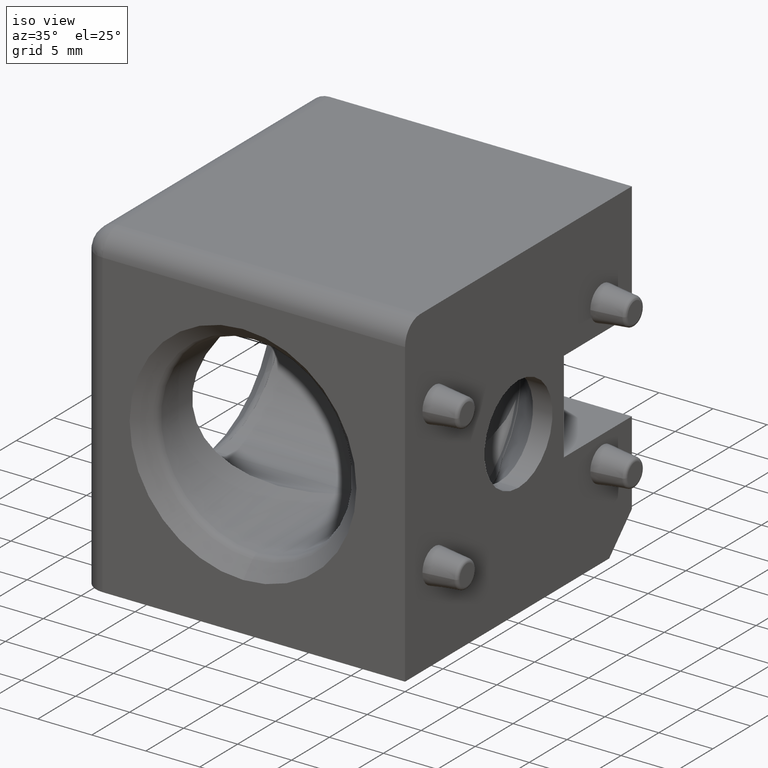
[diagram: clean part render]
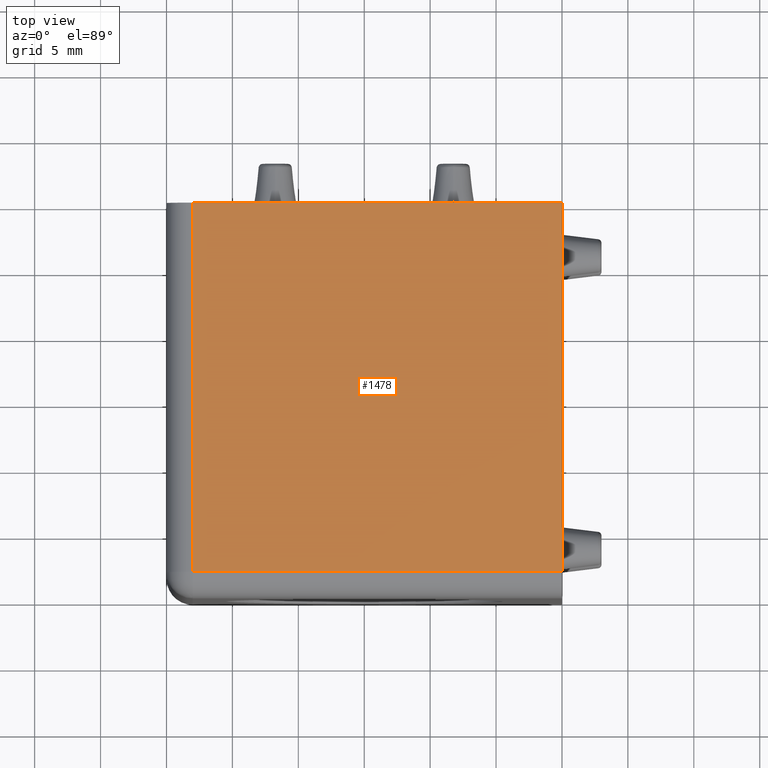
[diagram: tour spotlight — one face highlighted and labeled with its STEP entity id]
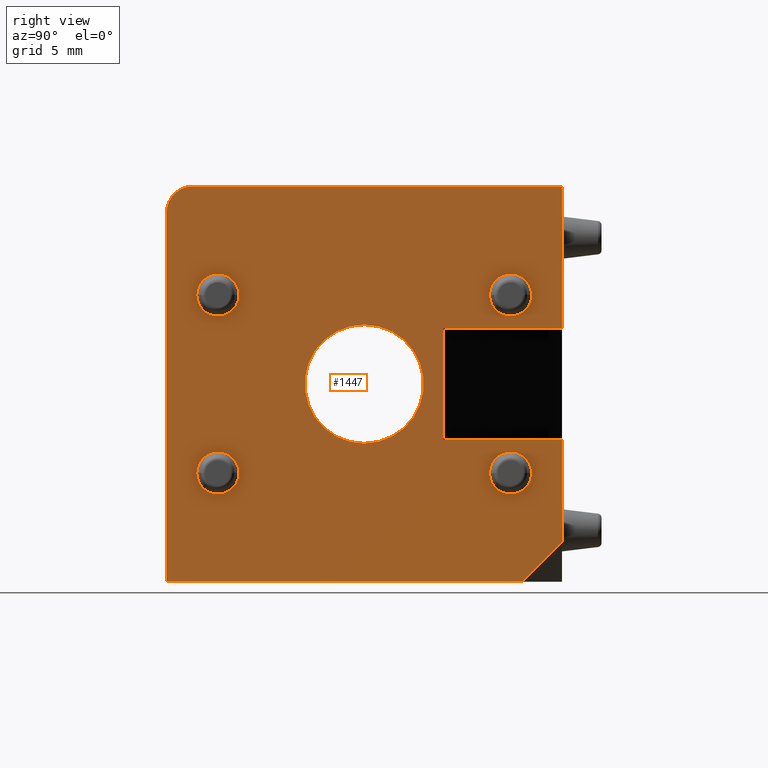
[diagram: tour spotlight — one face highlighted and labeled with its STEP entity id]
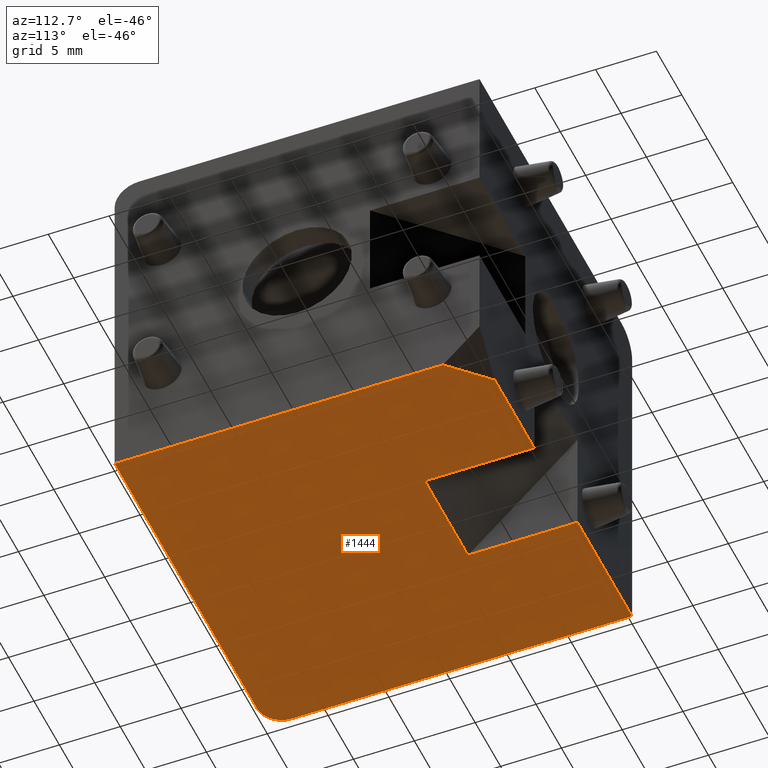
[diagram: tour spotlight — one face highlighted and labeled with its STEP entity id]
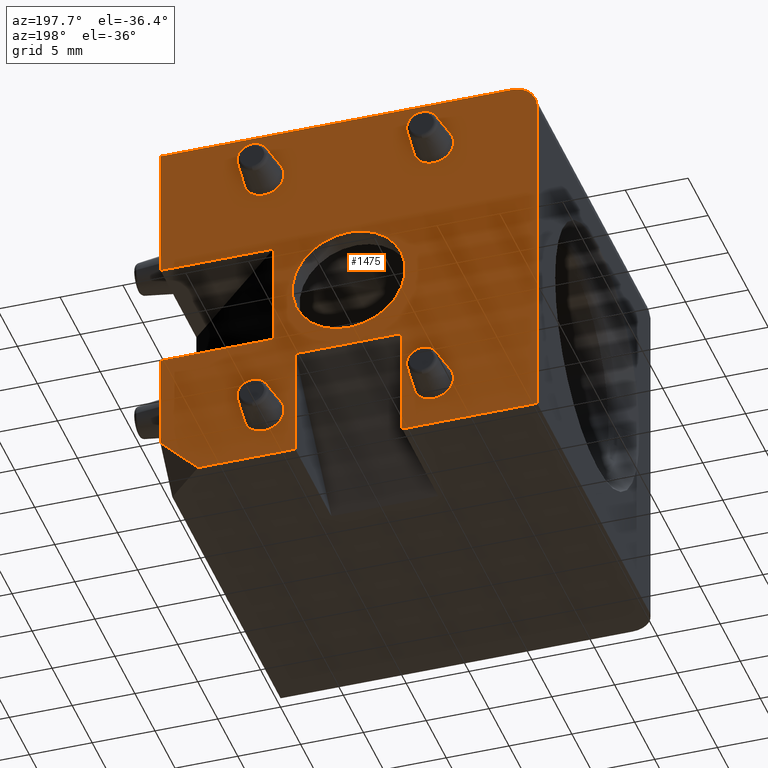
[diagram: tour spotlight — one face highlighted and labeled with its STEP entity id]
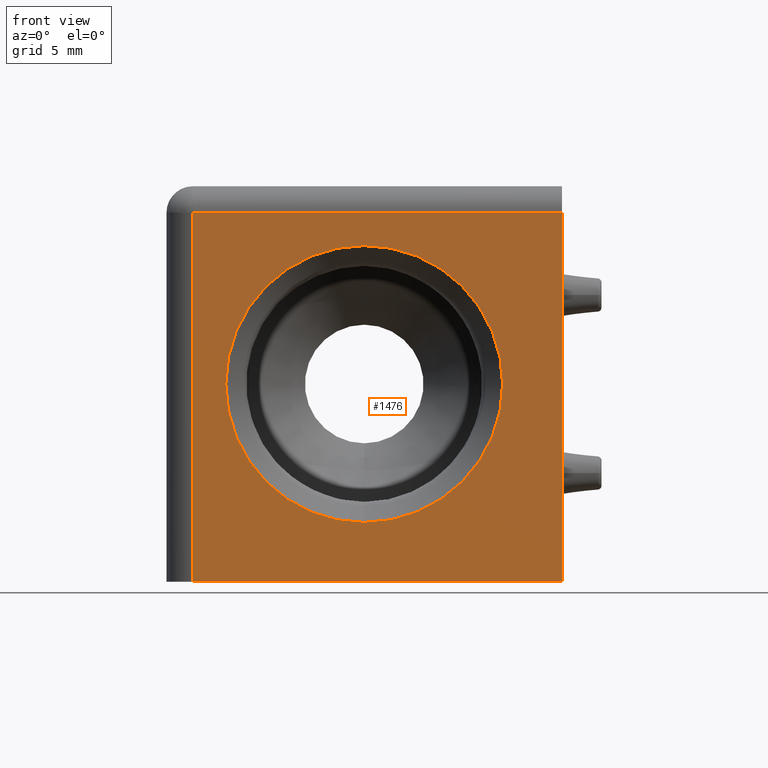
[diagram: tour spotlight — one face highlighted and labeled with its STEP entity id]
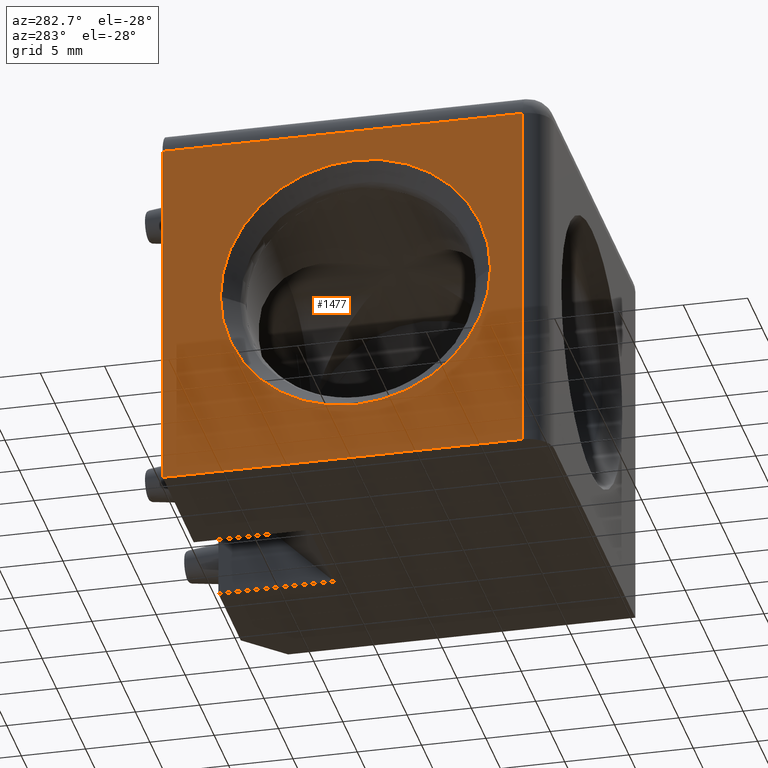
[diagram: tour spotlight — one face highlighted and labeled with its STEP entity id]
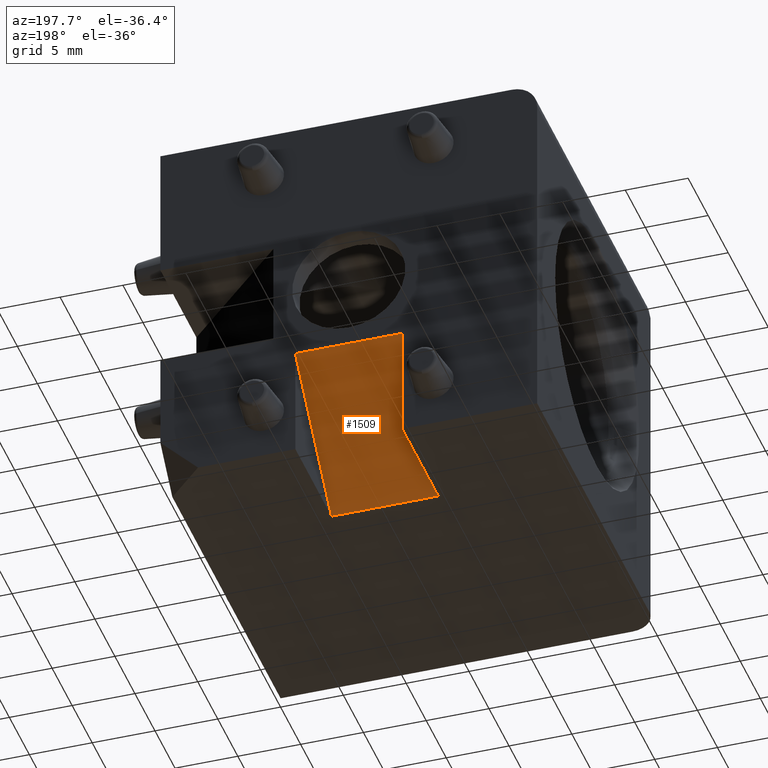
[diagram: tour spotlight — one face highlighted and labeled with its STEP entity id]
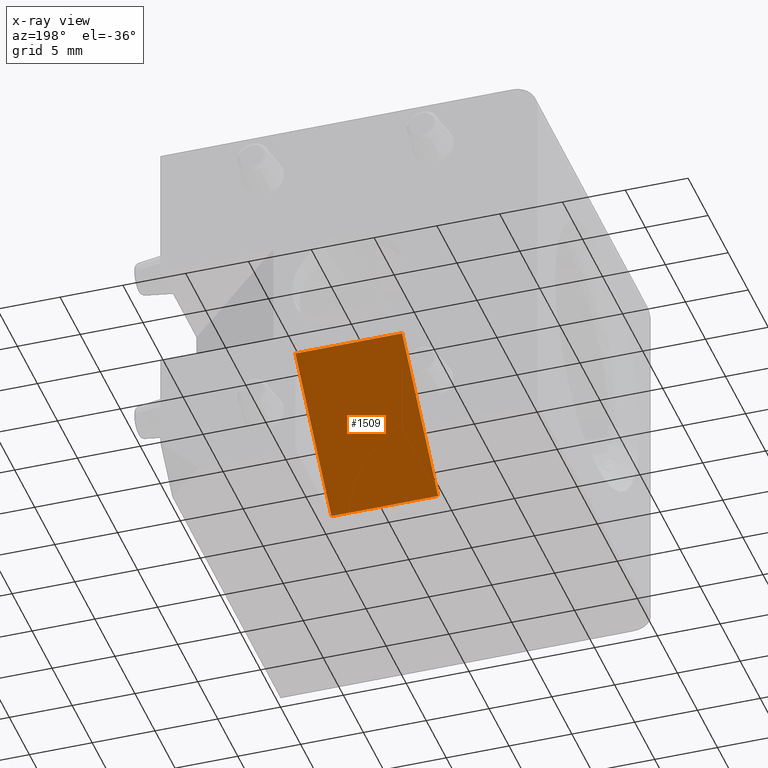
[diagram: x-ray of the same camera — body ghosted, this tour face saturated]
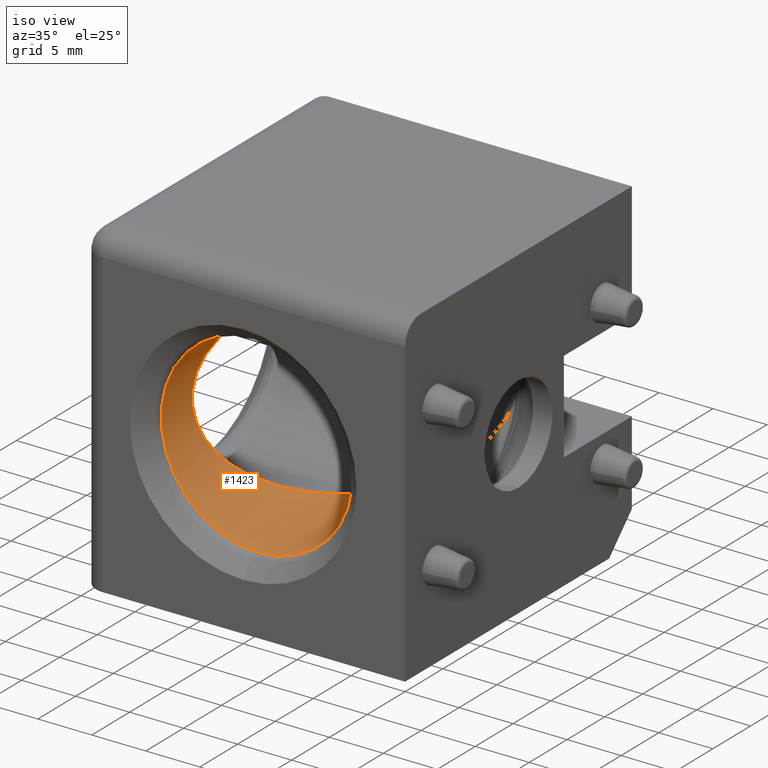
[diagram: tour spotlight — one face highlighted and labeled with its STEP entity id]
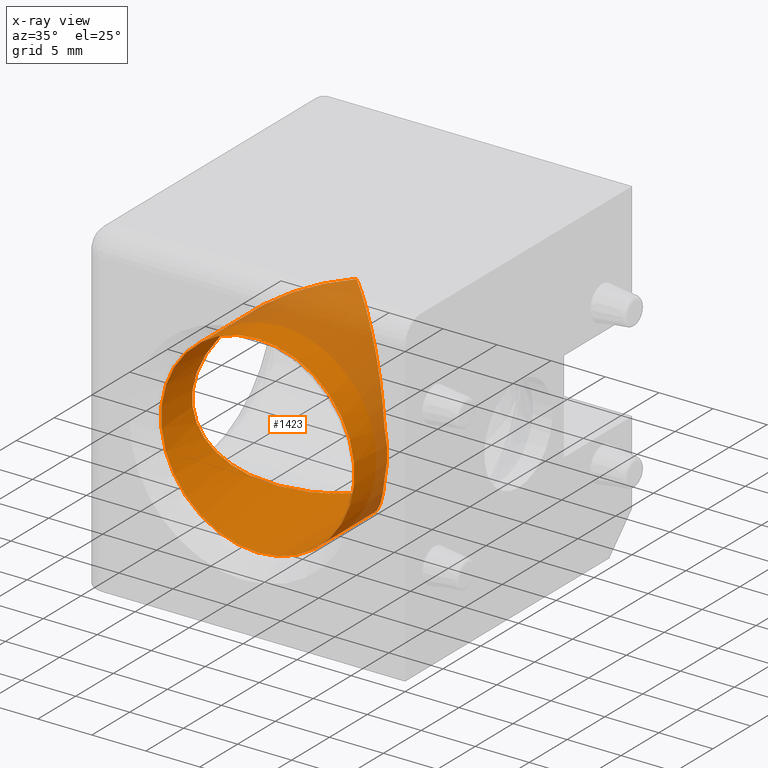
[diagram: x-ray of the same camera — body ghosted, this tour face saturated]
A machine part: a face-by-face anatomy tour. The part has 99 B-rep faces; the first image is the clean iso view, then the 8 largest visible faces are spotlighted one at a time (largest first), each with its STEP entity span.

Face 1 — top view, entity #1478. In plain terms, the highlighted planar face has unit normal (0, 0, 1).
Definition (entity closure, byte-faithful):
#42=PLANE('',#1691);
#80=LINE('',#2590,#148);
#112=LINE('',#2787,#180);
#120=LINE('',#2810,#188);
#121=LINE('',#2811,#189);
#148=VECTOR('',#1892,28.);
#180=VECTOR('',#2122,28.);
#188=VECTOR('',#2150,28.);
#189=VECTOR('',#2151,28.);
#321=FACE_OUTER_BOUND('',#436,.T.);
#436=EDGE_LOOP('',(#1240,#1241,#1242,#1243));
#654=VERTEX_POINT('',#2587);
#655=VERTEX_POINT('',#2589);
#721=VERTEX_POINT('',#2785);
#726=VERTEX_POINT('',#2809);
#812=EDGE_CURVE('',#655,#654,#80,.T.);
#915=EDGE_CURVE('',#654,#721,#112,.T.);
#930=EDGE_CURVE('',#721,#726,#120,.T.);
#931=EDGE_CURVE('',#726,#655,#121,.T.);
#1240=ORIENTED_EDGE('',*,*,#812,.T.);
#1241=ORIENTED_EDGE('',*,*,#915,.T.);
#1242=ORIENTED_EDGE('',*,*,#930,.T.);
#1243=ORIENTED_EDGE('',*,*,#931,.T.);
#1478=ADVANCED_FACE('',(#321),#42,.T.);
#1691=AXIS2_PLACEMENT_3D('',#2808,#2148,#2149);
#1892=DIRECTION('',(-1.15648231731787E-16,1.,0.));
#2122=DIRECTION('',(-1.,0.,0.));
#2148=DIRECTION('center_axis',(0.,0.,1.));
#2149=DIRECTION('ref_axis',(1.,0.,0.));
#2150=DIRECTION('',(1.15648231731787E-16,-1.,0.));
#2151=DIRECTION('',(1.,0.,0.));
#2587=CARTESIAN_POINT('',(15.,15.,15.));
#2589=CARTESIAN_POINT('',(15.,-13.,15.));
#2590=CARTESIAN_POINT('',(15.,15.,15.));
#2785=CARTESIAN_POINT('',(-13.,15.,15.));
#2787=CARTESIAN_POINT('',(-15.,15.,15.));
#2808=CARTESIAN_POINT('Origin',(-15.,-15.,15.));
#2809=CARTESIAN_POINT('',(-13.,-13.,15.));
#2810=CARTESIAN_POINT('',(-13.,-15.,15.));
#2811=CARTESIAN_POINT('',(15.,-13.,15.));

Face 2 — right view, entity #1447. In plain terms, the highlighted planar face has unit normal (-1, -0, 0).
Definition (entity closure, byte-faithful):
#37=PLANE('',#1582);
#61=LINE('',#2545,#129);
#74=LINE('',#2578,#142);
#75=LINE('',#2580,#143);
#76=LINE('',#2582,#144);
#77=LINE('',#2584,#145);
#78=LINE('',#2586,#146);
#79=LINE('',#2588,#147);
#80=LINE('',#2590,#148);
#81=LINE('',#2593,#149);
#129=VECTOR('',#1859,27.);
#142=VECTOR('',#1886,4.24264068711926);
#143=VECTOR('',#1887,7.75000000000004);
#144=VECTOR('',#1888,9.);
#145=VECTOR('',#1889,8.5);
#146=VECTOR('',#1890,9.);
#147=VECTOR('',#1891,10.75);
#148=VECTOR('',#1892,28.);
#149=VECTOR('',#1895,28.);
#225=FACE_BOUND('',#394,.T.);
#226=FACE_BOUND('',#395,.T.);
#227=FACE_BOUND('',#396,.T.);
#228=FACE_BOUND('',#397,.T.);
#229=FACE_BOUND('',#398,.T.);
#290=FACE_OUTER_BOUND('',#393,.T.);
#393=EDGE_LOOP('',(#1069,#1070,#1071,#1072,#1073,#1074,#1075,#1076,#1077,
#1078));
#394=EDGE_LOOP('',(#1079,#1080));
#395=EDGE_LOOP('',(#1081,#1082));
#396=EDGE_LOOP('',(#1083,#1084));
#397=EDGE_LOOP('',(#1085,#1086));
#398=EDGE_LOOP('',(#1087,#1088));
#503=CIRCLE('',#1581,4.5);
#504=CIRCLE('',#1583,2.);
#505=CIRCLE('',#1584,4.5);
#506=CIRCLE('',#1585,1.6);
#507=CIRCLE('',#1586,1.6);
#508=CIRCLE('',#1587,1.6);
#509=CIRCLE('',#1588,1.6);
#510=CIRCLE('',#1589,1.6);
#511=CIRCLE('',#1590,1.6);
#512=CIRCLE('',#1591,1.6);
#513=CIRCLE('',#1592,1.6);
#635=VERTEX_POINT('',#2543);
#636=VERTEX_POINT('',#2544);
#647=VERTEX_POINT('',#2571);
#648=VERTEX_POINT('',#2573);
#649=VERTEX_POINT('',#2577);
#650=VERTEX_POINT('',#2579);
#651=VERTEX_POINT('',#2581);
#652=VERTEX_POINT('',#2583);
#653=VERTEX_POINT('',#2585);
#654=VERTEX_POINT('',#2587);
#655=VERTEX_POINT('',#2589);
#656=VERTEX_POINT('',#2591);
#657=VERTEX_POINT('',#2595);
#658=VERTEX_POINT('',#2596);
#659=VERTEX_POINT('',#2599);
#660=VERTEX_POINT('',#2600);
#661=VERTEX_POINT('',#2603);
#662=VERTEX_POINT('',#2604);
#663=VERTEX_POINT('',#2607);
#664=VERTEX_POINT('',#2608);
#789=EDGE_CURVE('',#635,#636,#61,.T.);
#804=EDGE_CURVE('',#648,#647,#503,.T.);
#806=EDGE_CURVE('',#636,#649,#74,.T.);
#807=EDGE_CURVE('',#650,#649,#75,.T.);
#808=EDGE_CURVE('',#651,#650,#76,.T.);
#809=EDGE_CURVE('',#651,#652,#77,.T.);
#810=EDGE_CURVE('',#652,#653,#78,.T.);
#811=EDGE_CURVE('',#654,#653,#79,.T.);
#812=EDGE_CURVE('',#655,#654,#80,.T.);
#813=EDGE_CURVE('',#655,#656,#504,.T.);
#814=EDGE_CURVE('',#656,#635,#81,.T.);
#815=EDGE_CURVE('',#647,#648,#505,.T.);
#816=EDGE_CURVE('',#657,#658,#506,.T.);
#817=EDGE_CURVE('',#658,#657,#507,.T.);
#818=EDGE_CURVE('',#659,#660,#508,.T.);
#819=EDGE_CURVE('',#660,#659,#509,.T.);
#820=EDGE_CURVE('',#661,#662,#510,.T.);
#821=EDGE_CURVE('',#662,#661,#511,.T.);
#822=EDGE_CURVE('',#663,#664,#512,.T.);
#823=EDGE_CURVE('',#664,#663,#513,.T.);
#1069=ORIENTED_EDGE('',*,*,#789,.T.);
#1070=ORIENTED_EDGE('',*,*,#806,.T.);
#1071=ORIENTED_EDGE('',*,*,#807,.F.);
#1072=ORIENTED_EDGE('',*,*,#808,.F.);
#1073=ORIENTED_EDGE('',*,*,#809,.T.);
#1074=ORIENTED_EDGE('',*,*,#810,.T.);
#1075=ORIENTED_EDGE('',*,*,#811,.F.);
#1076=ORIENTED_EDGE('',*,*,#812,.F.);
#1077=ORIENTED_EDGE('',*,*,#813,.T.);
#1078=ORIENTED_EDGE('',*,*,#814,.T.);
#1079=ORIENTED_EDGE('',*,*,#815,.T.);
#1080=ORIENTED_EDGE('',*,*,#804,.T.);
#1081=ORIENTED_EDGE('',*,*,#816,.F.);
#1082=ORIENTED_EDGE('',*,*,#817,.F.);
#1083=ORIENTED_EDGE('',*,*,#818,.F.);
#1084=ORIENTED_EDGE('',*,*,#819,.F.);
#1085=ORIENTED_EDGE('',*,*,#820,.F.);
#1086=ORIENTED_EDGE('',*,*,#821,.F.);
#1087=ORIENTED_EDGE('',*,*,#822,.F.);
#1088=ORIENTED_EDGE('',*,*,#823,.F.);
#1447=ADVANCED_FACE('',(#290,#225,#226,#227,#228,#229),#37,.F.);
#1581=AXIS2_PLACEMENT_3D('',#2574,#1881,#1882);
#1582=AXIS2_PLACEMENT_3D('',#2576,#1884,#1885);
#1583=AXIS2_PLACEMENT_3D('',#2592,#1893,#1894);
#1584=AXIS2_PLACEMENT_3D('',#2594,#1896,#1897);
#1585=AXIS2_PLACEMENT_3D('',#2597,#1898,#1899);
#1586=AXIS2_PLACEMENT_3D('',#2598,#1900,#1901);
#1587=AXIS2_PLACEMENT_3D('',#2601,#1902,#1903);
#1588=AXIS2_PLACEMENT_3D('',#2602,#1904,#1905);
#1589=AXIS2_PLACEMENT_3D('',#2605,#1906,#1907);
#1590=AXIS2_PLACEMENT_3D('',#2606,#1908,#1909);
#1591=AXIS2_PLACEMENT_3D('',#2609,#1910,#1911);
#1592=AXIS2_PLACEMENT_3D('',#2610,#1912,#1913);
#1859=DIRECTION('',(-1.15648231731787E-16,1.,0.));
#1881=DIRECTION('center_axis',(-1.,0.,0.));
#1882=DIRECTION('ref_axis',(0.,0.,1.));
#1884=DIRECTION('center_axis',(-1.,-1.15648231731787E-16,0.));
#1885=DIRECTION('ref_axis',(0.,1.,0.));
#1886=DIRECTION('',(-8.17756488897804E-17,0.707106781186552,0.707106781186543));
#1887=DIRECTION('',(0.,0.,-1.));
#1888=DIRECTION('',(-1.92747052886312E-16,1.,0.));
#1889=DIRECTION('',(0.,0.,1.));
#1890=DIRECTION('',(-1.92747052886312E-16,1.,0.));
#1891=DIRECTION('',(0.,0.,-1.));
#1892=DIRECTION('',(-1.15648231731787E-16,1.,0.));
#1893=DIRECTION('center_axis',(1.,0.,0.));
#1894=DIRECTION('ref_axis',(0.,-1.,0.));
#1895=DIRECTION('',(0.,0.,-1.));
#1896=DIRECTION('center_axis',(-1.,0.,0.));
#1897=DIRECTION('ref_axis',(0.,0.,1.));
#1898=DIRECTION('center_axis',(1.,0.,0.));
#1899=DIRECTION('ref_axis',(0.,-1.,0.));
#1900=DIRECTION('center_axis',(1.,0.,0.));
#1901=DIRECTION('ref_axis',(0.,-1.,0.));
#1902=DIRECTION('center_axis',(1.,0.,0.));
#1903=DIRECTION('ref_axis',(0.,-1.,0.));
#1904=DIRECTION('center_axis',(1.,0.,0.));
#1905=DIRECTION('ref_axis',(0.,-1.,0.));
#1906=DIRECTION('center_axis',(1.,0.,0.));
#1907=DIRECTION('ref_axis',(0.,-1.,0.));
#1908=DIRECTION('center_axis',(1.,0.,0.));
#1909=DIRECTION('ref_axis',(0.,-1.,0.));
#1910=DIRECTION('center_axis',(1.,0.,0.));
#1911=DIRECTION('ref_axis',(0.,-1.,0.));
#1912=DIRECTION('center_axis',(1.,0.,0.));
#1913=DIRECTION('ref_axis',(0.,-1.,0.));
#2543=CARTESIAN_POINT('',(15.,-15.,-15.));
#2544=CARTESIAN_POINT('',(15.,12.,-15.));
#2545=CARTESIAN_POINT('',(15.,15.,-15.));
#2571=CARTESIAN_POINT('',(15.,5.51091059616309E-16,-4.5));
#2573=CARTESIAN_POINT('',(15.,0.,4.5));
#2574=CARTESIAN_POINT('Origin',(15.,0.,0.));
#2576=CARTESIAN_POINT('Origin',(15.,15.,15.));
#2577=CARTESIAN_POINT('',(15.,15.,-12.));
#2578=CARTESIAN_POINT('',(15.,14.25,-12.75));
#2579=CARTESIAN_POINT('',(15.,15.,-4.25));
#2580=CARTESIAN_POINT('',(15.,15.,15.));
#2581=CARTESIAN_POINT('',(15.,6.,-4.25));
#2582=CARTESIAN_POINT('',(15.,6.,-4.25));
#2583=CARTESIAN_POINT('',(15.,6.,4.25));
#2584=CARTESIAN_POINT('',(15.,6.,-4.25));
#2585=CARTESIAN_POINT('',(15.,15.,4.25));
#2586=CARTESIAN_POINT('',(15.,6.,4.25));
#2587=CARTESIAN_POINT('',(15.,15.,15.));
#2588=CARTESIAN_POINT('',(15.,15.,15.));
#2589=CARTESIAN_POINT('',(15.,-13.,15.));
#2590=CARTESIAN_POINT('',(15.,15.,15.));
#2591=CARTESIAN_POINT('',(15.,-15.,13.));
#2592=CARTESIAN_POINT('Origin',(15.,-13.,13.));
#2593=CARTESIAN_POINT('',(15.,-15.,15.));
#2594=CARTESIAN_POINT('Origin',(15.,0.,0.));
#2595=CARTESIAN_POINT('',(15.,12.7,-6.75));
#2596=CARTESIAN_POINT('',(15.,9.50000000000001,-6.75));
#2597=CARTESIAN_POINT('Origin',(15.,11.1,-6.75));
#2598=CARTESIAN_POINT('Origin',(15.,11.1,-6.75));
#2599=CARTESIAN_POINT('',(15.,12.7,6.75));
#2600=CARTESIAN_POINT('',(15.,9.5,6.75));
#2601=CARTESIAN_POINT('Origin',(15.,11.1,6.75));
#2602=CARTESIAN_POINT('Origin',(15.,11.1,6.75));
#2603=CARTESIAN_POINT('',(15.,-9.5,6.75));
#2604=CARTESIAN_POINT('',(15.,-12.7,6.75));
#2605=CARTESIAN_POINT('Origin',(15.,-11.1,6.75));
#2606=CARTESIAN_POINT('Origin',(15.,-11.1,6.75));
#2607=CARTESIAN_POINT('',(15.,-9.5,-6.75));
#2608=CARTESIAN_POINT('',(15.,-12.7,-6.75));
#2609=CARTESIAN_POINT('Origin',(15.,-11.1,-6.75));
#2610=CARTESIAN_POINT('Origin',(15.,-11.1,-6.75));

Face 3 — auxiliary view, entity #1444. In plain terms, the highlighted planar face has unit normal (0, 0, 1).
Definition (entity closure, byte-faithful):
#36=PLANE('',#1575);
#61=LINE('',#2545,#129);
#62=LINE('',#2547,#130);
#63=LINE('',#2551,#131);
#64=LINE('',#2553,#132);
#65=LINE('',#2555,#133);
#66=LINE('',#2557,#134);
#67=LINE('',#2559,#135);
#68=LINE('',#2561,#136);
#69=LINE('',#2562,#137);
#129=VECTOR('',#1859,27.);
#130=VECTOR('',#1860,28.);
#131=VECTOR('',#1863,28.);
#132=VECTOR('',#1864,10.75);
#133=VECTOR('',#1865,9.);
#134=VECTOR('',#1866,8.5);
#135=VECTOR('',#1867,9.);
#136=VECTOR('',#1868,7.75);
#137=VECTOR('',#1869,4.24264068711928);
#287=FACE_OUTER_BOUND('',#390,.T.);
#390=EDGE_LOOP('',(#1049,#1050,#1051,#1052,#1053,#1054,#1055,#1056,#1057,
#1058));
#500=CIRCLE('',#1576,2.);
#635=VERTEX_POINT('',#2543);
#636=VERTEX_POINT('',#2544);
#637=VERTEX_POINT('',#2546);
#638=VERTEX_POINT('',#2548);
#639=VERTEX_POINT('',#2550);
#640=VERTEX_POINT('',#2552);
#641=VERTEX_POINT('',#2554);
#642=VERTEX_POINT('',#2556);
#643=VERTEX_POINT('',#2558);
#644=VERTEX_POINT('',#2560);
#789=EDGE_CURVE('',#635,#636,#61,.T.);
#790=EDGE_CURVE('',#637,#635,#62,.T.);
#791=EDGE_CURVE('',#637,#638,#500,.T.);
#792=EDGE_CURVE('',#639,#638,#63,.T.);
#793=EDGE_CURVE('',#640,#639,#64,.T.);
#794=EDGE_CURVE('',#641,#640,#65,.T.);
#795=EDGE_CURVE('',#641,#642,#66,.T.);
#796=EDGE_CURVE('',#642,#643,#67,.T.);
#797=EDGE_CURVE('',#644,#643,#68,.T.);
#798=EDGE_CURVE('',#636,#644,#69,.T.);
#1049=ORIENTED_EDGE('',*,*,#789,.F.);
#1050=ORIENTED_EDGE('',*,*,#790,.F.);
#1051=ORIENTED_EDGE('',*,*,#791,.T.);
#1052=ORIENTED_EDGE('',*,*,#792,.F.);
#1053=ORIENTED_EDGE('',*,*,#793,.F.);
#1054=ORIENTED_EDGE('',*,*,#794,.F.);
#1055=ORIENTED_EDGE('',*,*,#795,.T.);
#1056=ORIENTED_EDGE('',*,*,#796,.T.);
#1057=ORIENTED_EDGE('',*,*,#797,.F.);
#1058=ORIENTED_EDGE('',*,*,#798,.F.);
#1444=ADVANCED_FACE('',(#287),#36,.F.);
#1575=AXIS2_PLACEMENT_3D('',#2542,#1857,#1858);
#1576=AXIS2_PLACEMENT_3D('',#2549,#1861,#1862);
#1857=DIRECTION('center_axis',(0.,0.,1.));
#1858=DIRECTION('ref_axis',(1.,0.,0.));
#1859=DIRECTION('',(-1.15648231731787E-16,1.,0.));
#1860=DIRECTION('',(1.,0.,0.));
#1861=DIRECTION('center_axis',(0.,0.,-1.));
#1862=DIRECTION('ref_axis',(1.,0.,0.));
#1863=DIRECTION('',(1.15648231731787E-16,-1.,0.));
#1864=DIRECTION('',(-1.,0.,0.));
#1865=DIRECTION('',(0.,1.,0.));
#1866=DIRECTION('',(1.,0.,0.));
#1867=DIRECTION('',(0.,1.,0.));
#1868=DIRECTION('',(-1.,0.,0.));
#1869=DIRECTION('',(-0.707106781186548,0.707106781186548,0.));
#2542=CARTESIAN_POINT('Origin',(12.9568111675367,0.,-15.));
#2543=CARTESIAN_POINT('',(15.,-15.,-15.));
#2544=CARTESIAN_POINT('',(15.,12.,-15.));
#2545=CARTESIAN_POINT('',(15.,15.,-15.));
#2546=CARTESIAN_POINT('',(-13.,-15.,-15.));
#2547=CARTESIAN_POINT('',(-15.,-15.,-15.));
#2548=CARTESIAN_POINT('',(-15.,-13.,-15.));
#2549=CARTESIAN_POINT('Origin',(-13.,-13.,-15.));
#2550=CARTESIAN_POINT('',(-15.,15.,-15.));
#2551=CARTESIAN_POINT('',(-15.,15.,-15.));
#2552=CARTESIAN_POINT('',(-4.25,15.,-15.));
#2553=CARTESIAN_POINT('',(-15.,15.,-15.));
#2554=CARTESIAN_POINT('',(-4.25,5.99999999999999,-15.));
#2555=CARTESIAN_POINT('',(-4.25,6.,-15.));
#2556=CARTESIAN_POINT('',(4.25,5.99999999999999,-15.));
#2557=CARTESIAN_POINT('',(-7.5,5.99999999999999,-15.));
#2558=CARTESIAN_POINT('',(4.25,15.,-15.));
#2559=CARTESIAN_POINT('',(4.25,6.,-15.));
#2560=CARTESIAN_POINT('',(12.,15.,-15.));
#2561=CARTESIAN_POINT('',(-15.,15.,-15.));
#2562=CARTESIAN_POINT('',(15.,12.,-15.));

Face 4 — auxiliary view, entity #1475. In plain terms, the highlighted planar face has unit normal (0, -1, 0).
Definition (entity closure, byte-faithful):
#39=PLANE('',#1680);
#64=LINE('',#2553,#132);
#68=LINE('',#2561,#136);
#75=LINE('',#2580,#143);
#79=LINE('',#2588,#147);
#84=LINE('',#2625,#152);
#108=LINE('',#2779,#176);
#109=LINE('',#2781,#177);
#110=LINE('',#2782,#178);
#111=LINE('',#2784,#179);
#112=LINE('',#2787,#180);
#113=LINE('',#2789,#181);
#114=LINE('',#2791,#182);
#115=LINE('',#2792,#183);
#132=VECTOR('',#1864,10.75);
#136=VECTOR('',#1868,7.75);
#143=VECTOR('',#1887,7.75000000000004);
#147=VECTOR('',#1891,10.75);
#152=VECTOR('',#1932,9.);
#176=VECTOR('',#2116,4.24264068711926);
#177=VECTOR('',#2117,9.);
#178=VECTOR('',#2118,8.5);
#179=VECTOR('',#2119,28.);
#180=VECTOR('',#2122,28.);
#181=VECTOR('',#2123,9.);
#182=VECTOR('',#2124,8.5);
#183=VECTOR('',#2125,9.);
#230=FACE_BOUND('',#427,.T.);
#231=FACE_BOUND('',#428,.T.);
#232=FACE_BOUND('',#429,.T.);
#233=FACE_BOUND('',#430,.T.);
#234=FACE_BOUND('',#431,.T.);
#318=FACE_OUTER_BOUND('',#426,.T.);
#426=EDGE_LOOP('',(#1204,#1205,#1206,#1207,#1208,#1209,#1210,#1211,#1212,
#1213,#1214,#1215,#1216,#1217));
#427=EDGE_LOOP('',(#1218,#1219));
#428=EDGE_LOOP('',(#1220,#1221));
#429=EDGE_LOOP('',(#1222,#1223));
#430=EDGE_LOOP('',(#1224,#1225));
#431=EDGE_LOOP('',(#1226,#1227));
#565=CIRCLE('',#1665,1.6);
#567=CIRCLE('',#1668,1.6);
#569=CIRCLE('',#1671,1.6);
#571=CIRCLE('',#1674,1.6);
#573=CIRCLE('',#1678,4.5);
#574=CIRCLE('',#1681,2.);
#575=CIRCLE('',#1682,1.6);
#576=CIRCLE('',#1683,1.6);
#577=CIRCLE('',#1684,4.5);
#578=CIRCLE('',#1685,1.6);
#579=CIRCLE('',#1686,1.6);
#639=VERTEX_POINT('',#2550);
#640=VERTEX_POINT('',#2552);
#643=VERTEX_POINT('',#2558);
#644=VERTEX_POINT('',#2560);
#649=VERTEX_POINT('',#2577);
#650=VERTEX_POINT('',#2579);
#653=VERTEX_POINT('',#2585);
#654=VERTEX_POINT('',#2587);
#668=VERTEX_POINT('',#2624);
#709=VERTEX_POINT('',#2743);
#710=VERTEX_POINT('',#2745);
#711=VERTEX_POINT('',#2750);
#712=VERTEX_POINT('',#2752);
#713=VERTEX_POINT('',#2757);
#714=VERTEX_POINT('',#2759);
#715=VERTEX_POINT('',#2764);
#716=VERTEX_POINT('',#2766);
#717=VERTEX_POINT('',#2772);
#718=VERTEX_POINT('',#2773);
#719=VERTEX_POINT('',#2780);
#720=VERTEX_POINT('',#2783);
#721=VERTEX_POINT('',#2785);
#722=VERTEX_POINT('',#2788);
#723=VERTEX_POINT('',#2790);
#793=EDGE_CURVE('',#640,#639,#64,.T.);
#797=EDGE_CURVE('',#644,#643,#68,.T.);
#807=EDGE_CURVE('',#650,#649,#75,.T.);
#811=EDGE_CURVE('',#654,#653,#79,.T.);
#830=EDGE_CURVE('',#640,#668,#84,.T.);
#892=EDGE_CURVE('',#709,#710,#565,.T.);
#896=EDGE_CURVE('',#711,#712,#567,.T.);
#900=EDGE_CURVE('',#713,#714,#569,.T.);
#904=EDGE_CURVE('',#715,#716,#571,.T.);
#907=EDGE_CURVE('',#717,#718,#573,.T.);
#910=EDGE_CURVE('',#649,#644,#108,.T.);
#911=EDGE_CURVE('',#643,#719,#109,.T.);
#912=EDGE_CURVE('',#668,#719,#110,.T.);
#913=EDGE_CURVE('',#720,#639,#111,.T.);
#914=EDGE_CURVE('',#720,#721,#574,.T.);
#915=EDGE_CURVE('',#654,#721,#112,.T.);
#916=EDGE_CURVE('',#653,#722,#113,.T.);
#917=EDGE_CURVE('',#723,#722,#114,.T.);
#918=EDGE_CURVE('',#650,#723,#115,.T.);
#919=EDGE_CURVE('',#710,#709,#575,.T.);
#920=EDGE_CURVE('',#714,#713,#576,.T.);
#921=EDGE_CURVE('',#718,#717,#577,.T.);
#922=EDGE_CURVE('',#716,#715,#578,.T.);
#923=EDGE_CURVE('',#712,#711,#579,.T.);
#1204=ORIENTED_EDGE('',*,*,#807,.T.);
#1205=ORIENTED_EDGE('',*,*,#910,.T.);
#1206=ORIENTED_EDGE('',*,*,#797,.T.);
#1207=ORIENTED_EDGE('',*,*,#911,.T.);
#1208=ORIENTED_EDGE('',*,*,#912,.F.);
#1209=ORIENTED_EDGE('',*,*,#830,.F.);
#1210=ORIENTED_EDGE('',*,*,#793,.T.);
#1211=ORIENTED_EDGE('',*,*,#913,.F.);
#1212=ORIENTED_EDGE('',*,*,#914,.T.);
#1213=ORIENTED_EDGE('',*,*,#915,.F.);
#1214=ORIENTED_EDGE('',*,*,#811,.T.);
#1215=ORIENTED_EDGE('',*,*,#916,.T.);
#1216=ORIENTED_EDGE('',*,*,#917,.F.);
#1217=ORIENTED_EDGE('',*,*,#918,.F.);
#1218=ORIENTED_EDGE('',*,*,#919,.F.);
#1219=ORIENTED_EDGE('',*,*,#892,.F.);
#1220=ORIENTED_EDGE('',*,*,#920,.F.);
#1221=ORIENTED_EDGE('',*,*,#900,.F.);
#1222=ORIENTED_EDGE('',*,*,#921,.T.);
#1223=ORIENTED_EDGE('',*,*,#907,.T.);
#1224=ORIENTED_EDGE('',*,*,#922,.F.);
#1225=ORIENTED_EDGE('',*,*,#904,.F.);
#1226=ORIENTED_EDGE('',*,*,#923,.F.);
#1227=ORIENTED_EDGE('',*,*,#896,.F.);
#1475=ADVANCED_FACE('',(#318,#230,#231,#232,#233,#234),#39,.F.);
#1665=AXIS2_PLACEMENT_3D('',#2746,#2075,#2076);
#1668=AXIS2_PLACEMENT_3D('',#2753,#2083,#2084);
#1671=AXIS2_PLACEMENT_3D('',#2760,#2091,#2092);
#1674=AXIS2_PLACEMENT_3D('',#2767,#2099,#2100);
#1678=AXIS2_PLACEMENT_3D('',#2774,#2108,#2109);
#1680=AXIS2_PLACEMENT_3D('',#2778,#2114,#2115);
#1681=AXIS2_PLACEMENT_3D('',#2786,#2120,#2121);
#1682=AXIS2_PLACEMENT_3D('',#2793,#2126,#2127);
#1683=AXIS2_PLACEMENT_3D('',#2794,#2128,#2129);
#1684=AXIS2_PLACEMENT_3D('',#2795,#2130,#2131);
#1685=AXIS2_PLACEMENT_3D('',#2796,#2132,#2133);
#1686=AXIS2_PLACEMENT_3D('',#2797,#2134,#2135);
#1864=DIRECTION('',(-1.,0.,0.));
#1868=DIRECTION('',(-1.,0.,0.));
#1887=DIRECTION('',(0.,0.,-1.));
#1891=DIRECTION('',(0.,0.,-1.));
#1932=DIRECTION('',(0.,0.,1.));
#2075=DIRECTION('center_axis',(0.,1.,0.));
#2076=DIRECTION('ref_axis',(0.,0.,-1.));
#2083=DIRECTION('center_axis',(0.,1.,0.));
#2084=DIRECTION('ref_axis',(0.,0.,-1.));
#2091=DIRECTION('center_axis',(0.,1.,0.));
#2092=DIRECTION('ref_axis',(0.,0.,-1.));
#2099=DIRECTION('center_axis',(0.,1.,0.));
#2100=DIRECTION('ref_axis',(0.,0.,-1.));
#2108=DIRECTION('center_axis',(0.,-1.,0.));
#2109=DIRECTION('ref_axis',(0.,0.,-1.));
#2114=DIRECTION('center_axis',(0.,-1.,0.));
#2115=DIRECTION('ref_axis',(0.,0.,-1.));
#2116=DIRECTION('',(-0.707106781186552,0.,-0.707106781186543));
#2117=DIRECTION('',(0.,0.,1.));
#2118=DIRECTION('',(1.,0.,0.));
#2119=DIRECTION('',(0.,0.,-1.));
#2120=DIRECTION('center_axis',(0.,1.,0.));
#2121=DIRECTION('ref_axis',(0.,0.,-1.));
#2122=DIRECTION('',(-1.,0.,0.));
#2123=DIRECTION('',(-1.,0.,0.));
#2124=DIRECTION('',(0.,0.,1.));
#2125=DIRECTION('',(-1.,0.,0.));
#2126=DIRECTION('center_axis',(0.,1.,0.));
#2127=DIRECTION('ref_axis',(0.,0.,-1.));
#2128=DIRECTION('center_axis',(0.,1.,0.));
#2129=DIRECTION('ref_axis',(0.,0.,-1.));
#2130=DIRECTION('center_axis',(0.,-1.,0.));
#2131=DIRECTION('ref_axis',(0.,0.,-1.));
#2132=DIRECTION('center_axis',(0.,1.,0.));
#2133=DIRECTION('ref_axis',(0.,0.,-1.));
#2134=DIRECTION('center_axis',(0.,1.,0.));
#2135=DIRECTION('ref_axis',(0.,0.,-1.));
#2550=CARTESIAN_POINT('',(-15.,15.,-15.));
#2552=CARTESIAN_POINT('',(-4.25,15.,-15.));
#2553=CARTESIAN_POINT('',(-15.,15.,-15.));
#2558=CARTESIAN_POINT('',(4.25,15.,-15.));
#2560=CARTESIAN_POINT('',(12.,15.,-15.));
#2561=CARTESIAN_POINT('',(-15.,15.,-15.));
#2577=CARTESIAN_POINT('',(15.,15.,-12.));
#2579=CARTESIAN_POINT('',(15.,15.,-4.25));
#2580=CARTESIAN_POINT('',(15.,15.,15.));
#2585=CARTESIAN_POINT('',(15.,15.,4.25));
#2587=CARTESIAN_POINT('',(15.,15.,15.));
#2588=CARTESIAN_POINT('',(15.,15.,15.));
#2624=CARTESIAN_POINT('',(-4.25,15.,-6.));
#2625=CARTESIAN_POINT('',(-4.25,15.,-6.));
#2743=CARTESIAN_POINT('',(6.75,15.,-12.7));
#2745=CARTESIAN_POINT('',(6.75,15.,-9.5));
#2746=CARTESIAN_POINT('Origin',(6.75,15.,-11.1));
#2750=CARTESIAN_POINT('',(-6.75,15.,-12.7));
#2752=CARTESIAN_POINT('',(-6.75,15.,-9.5));
#2753=CARTESIAN_POINT('Origin',(-6.75,15.,-11.1));
#2757=CARTESIAN_POINT('',(-6.75,15.,9.5));
#2759=CARTESIAN_POINT('',(-6.75,15.,12.7));
#2760=CARTESIAN_POINT('Origin',(-6.75,15.,11.1));
#2764=CARTESIAN_POINT('',(6.75,15.,9.5));
#2766=CARTESIAN_POINT('',(6.75,15.,12.7));
#2767=CARTESIAN_POINT('Origin',(6.75,15.,11.1));
#2772=CARTESIAN_POINT('',(5.51091059616309E-16,15.,4.5));
#2773=CARTESIAN_POINT('',(0.,15.,-4.5));
#2774=CARTESIAN_POINT('Origin',(0.,15.,0.));
#2778=CARTESIAN_POINT('Origin',(-15.,15.,15.));
#2779=CARTESIAN_POINT('',(16.5,15.,-10.5));
#2780=CARTESIAN_POINT('',(4.25,15.,-6.));
#2781=CARTESIAN_POINT('',(4.25,15.,-6.));
#2782=CARTESIAN_POINT('',(-4.25,15.,-6.));
#2783=CARTESIAN_POINT('',(-15.,15.,13.));
#2784=CARTESIAN_POINT('',(-15.,15.,15.));
#2785=CARTESIAN_POINT('',(-13.,15.,15.));
#2786=CARTESIAN_POINT('Origin',(-13.,15.,13.));
#2787=CARTESIAN_POINT('',(-15.,15.,15.));
#2788=CARTESIAN_POINT('',(6.,15.,4.25));
#2789=CARTESIAN_POINT('',(15.,15.,4.25));
#2790=CARTESIAN_POINT('',(6.,15.,-4.25));
#2791=CARTESIAN_POINT('',(6.,15.,-4.25));
#2792=CARTESIAN_POINT('',(15.,15.,-4.25));
#2793=CARTESIAN_POINT('Origin',(6.75,15.,-11.1));
#2794=CARTESIAN_POINT('Origin',(-6.75,15.,11.1));
#2795=CARTESIAN_POINT('Origin',(0.,15.,0.));
#2796=CARTESIAN_POINT('Origin',(6.75,15.,11.1));
#2797=CARTESIAN_POINT('Origin',(-6.75,15.,-11.1));

Face 5 — front view, entity #1476. In plain terms, the highlighted planar face has unit normal (0, 1, 0).
Definition (entity closure, byte-faithful):
#40=PLANE('',#1687);
#62=LINE('',#2547,#130);
#81=LINE('',#2593,#149);
#116=LINE('',#2800,#184);
#117=LINE('',#2801,#185);
#130=VECTOR('',#1860,28.);
#149=VECTOR('',#1895,28.);
#184=VECTOR('',#2138,28.);
#185=VECTOR('',#2139,28.);
#235=FACE_BOUND('',#433,.T.);
#319=FACE_OUTER_BOUND('',#432,.T.);
#432=EDGE_LOOP('',(#1228,#1229,#1230,#1231));
#433=EDGE_LOOP('',(#1232,#1233));
#527=CIRCLE('',#1614,10.5);
#580=CIRCLE('',#1688,10.5);
#635=VERTEX_POINT('',#2543);
#637=VERTEX_POINT('',#2546);
#656=VERTEX_POINT('',#2591);
#675=VERTEX_POINT('',#2648);
#676=VERTEX_POINT('',#2650);
#724=VERTEX_POINT('',#2799);
#790=EDGE_CURVE('',#637,#635,#62,.T.);
#814=EDGE_CURVE('',#656,#635,#81,.T.);
#844=EDGE_CURVE('',#676,#675,#527,.T.);
#924=EDGE_CURVE('',#656,#724,#116,.T.);
#925=EDGE_CURVE('',#724,#637,#117,.T.);
#926=EDGE_CURVE('',#675,#676,#580,.T.);
#1228=ORIENTED_EDGE('',*,*,#814,.F.);
#1229=ORIENTED_EDGE('',*,*,#924,.T.);
#1230=ORIENTED_EDGE('',*,*,#925,.T.);
#1231=ORIENTED_EDGE('',*,*,#790,.T.);
#1232=ORIENTED_EDGE('',*,*,#844,.T.);
#1233=ORIENTED_EDGE('',*,*,#926,.T.);
#1476=ADVANCED_FACE('',(#319,#235),#40,.F.);
#1614=AXIS2_PLACEMENT_3D('',#2651,#1963,#1964);
#1687=AXIS2_PLACEMENT_3D('',#2798,#2136,#2137);
#1688=AXIS2_PLACEMENT_3D('',#2802,#2140,#2141);
#1860=DIRECTION('',(1.,0.,0.));
#1895=DIRECTION('',(0.,0.,-1.));
#1963=DIRECTION('center_axis',(0.,1.,0.));
#1964=DIRECTION('ref_axis',(0.,0.,1.));
#2136=DIRECTION('center_axis',(0.,1.,0.));
#2137=DIRECTION('ref_axis',(1.,0.,0.));
#2138=DIRECTION('',(-1.,0.,0.));
#2139=DIRECTION('',(0.,0.,-1.));
#2140=DIRECTION('center_axis',(0.,1.,0.));
#2141=DIRECTION('ref_axis',(0.,0.,1.));
#2543=CARTESIAN_POINT('',(15.,-15.,-15.));
#2546=CARTESIAN_POINT('',(-13.,-15.,-15.));
#2547=CARTESIAN_POINT('',(-15.,-15.,-15.));
#2591=CARTESIAN_POINT('',(15.,-15.,13.));
#2593=CARTESIAN_POINT('',(15.,-15.,15.));
#2648=CARTESIAN_POINT('',(1.28587913910472E-15,-15.,10.5));
#2650=CARTESIAN_POINT('',(0.,-15.,-10.5));
#2651=CARTESIAN_POINT('Origin',(0.,-15.,0.));
#2798=CARTESIAN_POINT('Origin',(-15.,-15.,15.));
#2799=CARTESIAN_POINT('',(-13.,-15.,13.));
#2800=CARTESIAN_POINT('',(-15.,-15.,13.));
#2801=CARTESIAN_POINT('',(-13.,-15.,15.));
#2802=CARTESIAN_POINT('Origin',(0.,-15.,0.));

Face 6 — auxiliary view, entity #1477. In plain terms, the highlighted planar face has unit normal (1, 0, 0).
Definition (entity closure, byte-faithful):
#41=PLANE('',#1689);
#63=LINE('',#2551,#131);
#111=LINE('',#2784,#179);
#118=LINE('',#2805,#186);
#119=LINE('',#2806,#187);
#131=VECTOR('',#1863,28.);
#179=VECTOR('',#2119,28.);
#186=VECTOR('',#2144,28.);
#187=VECTOR('',#2145,28.);
#236=FACE_BOUND('',#435,.T.);
#320=FACE_OUTER_BOUND('',#434,.T.);
#434=EDGE_LOOP('',(#1234,#1235,#1236,#1237));
#435=EDGE_LOOP('',(#1238,#1239));
#525=CIRCLE('',#1611,10.5);
#581=CIRCLE('',#1690,10.5);
#638=VERTEX_POINT('',#2548);
#639=VERTEX_POINT('',#2550);
#673=VERTEX_POINT('',#2641);
#674=VERTEX_POINT('',#2643);
#720=VERTEX_POINT('',#2783);
#725=VERTEX_POINT('',#2804);
#792=EDGE_CURVE('',#639,#638,#63,.T.);
#840=EDGE_CURVE('',#674,#673,#525,.T.);
#913=EDGE_CURVE('',#720,#639,#111,.T.);
#927=EDGE_CURVE('',#638,#725,#118,.T.);
#928=EDGE_CURVE('',#725,#720,#119,.T.);
#929=EDGE_CURVE('',#673,#674,#581,.T.);
#1234=ORIENTED_EDGE('',*,*,#792,.T.);
#1235=ORIENTED_EDGE('',*,*,#927,.T.);
#1236=ORIENTED_EDGE('',*,*,#928,.T.);
#1237=ORIENTED_EDGE('',*,*,#913,.T.);
#1238=ORIENTED_EDGE('',*,*,#840,.T.);
#1239=ORIENTED_EDGE('',*,*,#929,.T.);
#1477=ADVANCED_FACE('',(#320,#236),#41,.F.);
#1611=AXIS2_PLACEMENT_3D('',#2644,#1955,#1956);
#1689=AXIS2_PLACEMENT_3D('',#2803,#2142,#2143);
#1690=AXIS2_PLACEMENT_3D('',#2807,#2146,#2147);
#1863=DIRECTION('',(1.15648231731787E-16,-1.,0.));
#1955=DIRECTION('center_axis',(1.,1.65211759616839E-16,0.));
#1956=DIRECTION('ref_axis',(-1.65211759616839E-16,1.,0.));
#2119=DIRECTION('',(0.,0.,-1.));
#2142=DIRECTION('center_axis',(1.,1.54673883685891E-48,1.33745135026891E-32));
#2143=DIRECTION('ref_axis',(0.,1.,0.));
#2144=DIRECTION('',(0.,0.,1.));
#2145=DIRECTION('',(-1.15648231731787E-16,1.,0.));
#2146=DIRECTION('center_axis',(1.,1.65211759616839E-16,0.));
#2147=DIRECTION('ref_axis',(-1.65211759616839E-16,1.,0.));
#2548=CARTESIAN_POINT('',(-15.,-13.,-15.));
#2550=CARTESIAN_POINT('',(-15.,15.,-15.));
#2551=CARTESIAN_POINT('',(-15.,15.,-15.));
#2641=CARTESIAN_POINT('',(-15.,10.5,1.28587913910472E-15));
#2643=CARTESIAN_POINT('',(-15.,-10.5,0.));
#2644=CARTESIAN_POINT('Origin',(-15.,3.17977330203011E-17,0.));
#2783=CARTESIAN_POINT('',(-15.,15.,13.));
#2784=CARTESIAN_POINT('',(-15.,15.,15.));
#2803=CARTESIAN_POINT('Origin',(-15.,15.,15.));
#2804=CARTESIAN_POINT('',(-15.,-13.,13.));
#2805=CARTESIAN_POINT('',(-15.,-13.,15.));
#2806=CARTESIAN_POINT('',(-15.,15.,13.));
#2807=CARTESIAN_POINT('Origin',(-15.,3.17977330203011E-17,0.));

Face 7 — auxiliary view, entity #1509. An x-ray twin of the same camera follows (body ghosted, this face saturated) — the face is partly hidden behind the body. In plain terms, the highlighted planar face has unit normal (0, -0.7071, 0.7071).
Definition (entity closure, byte-faithful):
#51=PLANE('',#1733);
#66=LINE('',#2557,#134);
#85=LINE('',#2626,#153);
#110=LINE('',#2782,#178);
#122=LINE('',#2854,#190);
#134=VECTOR('',#1866,8.5);
#153=VECTOR('',#1933,12.7279220613579);
#178=VECTOR('',#2118,8.5);
#190=VECTOR('',#2236,12.7279220613579);
#352=FACE_OUTER_BOUND('',#467,.T.);
#467=EDGE_LOOP('',(#1347,#1348,#1349,#1350));
#641=VERTEX_POINT('',#2554);
#642=VERTEX_POINT('',#2556);
#668=VERTEX_POINT('',#2624);
#719=VERTEX_POINT('',#2780);
#795=EDGE_CURVE('',#641,#642,#66,.T.);
#831=EDGE_CURVE('',#641,#668,#85,.T.);
#912=EDGE_CURVE('',#668,#719,#110,.T.);
#943=EDGE_CURVE('',#719,#642,#122,.T.);
#1347=ORIENTED_EDGE('',*,*,#831,.T.);
#1348=ORIENTED_EDGE('',*,*,#912,.T.);
#1349=ORIENTED_EDGE('',*,*,#943,.T.);
#1350=ORIENTED_EDGE('',*,*,#795,.F.);
#1509=ADVANCED_FACE('',(#352),#51,.F.);
#1733=AXIS2_PLACEMENT_3D('',#2853,#2234,#2235);
#1866=DIRECTION('',(1.,0.,0.));
#1933=DIRECTION('',(0.,0.707106781186548,0.707106781186547));
#2118=DIRECTION('',(1.,0.,0.));
#2234=DIRECTION('center_axis',(0.,-0.707106781186548,0.707106781186548));
#2235=DIRECTION('ref_axis',(-1.,0.,0.));
#2236=DIRECTION('',(0.,-0.707106781186548,-0.707106781186548));
#2554=CARTESIAN_POINT('',(-4.25,5.99999999999999,-15.));
#2556=CARTESIAN_POINT('',(4.25,5.99999999999999,-15.));
#2557=CARTESIAN_POINT('',(-7.5,5.99999999999999,-15.));
#2624=CARTESIAN_POINT('',(-4.25,15.,-6.));
#2626=CARTESIAN_POINT('',(-4.25,11.0813778117713,-9.91862218822868));
#2780=CARTESIAN_POINT('',(4.25,15.,-6.));
#2782=CARTESIAN_POINT('',(-4.25,15.,-6.));
#2853=CARTESIAN_POINT('Origin',(-4.25,15.,-6.));
#2854=CARTESIAN_POINT('',(4.25,15.,-6.));

Face 8 — iso view, entity #1423. An x-ray twin of the same camera follows (body ghosted, this face saturated) — the face is partly hidden behind the body. In plain terms, the highlighted cylindrical surface (bore or boss wall) has radius 8.949 mm, axis along (0, -1, 0).
Definition (entity closure, byte-faithful):
#195=ELLIPSE('',#1533,12.6557971696768,8.949);
#196=ELLIPSE('',#1534,12.6557971696768,8.949);
#197=ELLIPSE('',#1535,12.6557971696768,8.949);
#201=CYLINDRICAL_SURFACE('',#1532,8.949);
#222=FACE_BOUND('',#367,.T.);
#242=B_SPLINE_CURVE_WITH_KNOTS('',3,(#2335,#2336,#2337,#2338,#2339,#2340),
 .UNSPECIFIED.,.F.,.F.,(4,2,4),(1.80656073513661,2.0077677180275,2.20897470091839),
 .UNSPECIFIED.);
#266=FACE_OUTER_BOUND('',#366,.T.);
#366=EDGE_LOOP('',(#962,#963,#964,#965));
#367=EDGE_LOOP('',(#966,#967));
#483=CIRCLE('',#1536,8.949);
#484=CIRCLE('',#1537,8.949);
#606=VERTEX_POINT('',#2326);
#607=VERTEX_POINT('',#2330);
#608=VERTEX_POINT('',#2332);
#609=VERTEX_POINT('',#2334);
#610=VERTEX_POINT('',#2342);
#611=VERTEX_POINT('',#2343);
#742=EDGE_CURVE('',#607,#606,#195,.T.);
#743=EDGE_CURVE('',#608,#607,#196,.T.);
#744=EDGE_CURVE('',#609,#608,#242,.T.);
#745=EDGE_CURVE('',#606,#609,#197,.T.);
#746=EDGE_CURVE('',#610,#611,#483,.T.);
#747=EDGE_CURVE('',#611,#610,#484,.T.);
#962=ORIENTED_EDGE('',*,*,#742,.F.);
#963=ORIENTED_EDGE('',*,*,#743,.F.);
#964=ORIENTED_EDGE('',*,*,#744,.F.);
#965=ORIENTED_EDGE('',*,*,#745,.F.);
#966=ORIENTED_EDGE('',*,*,#746,.F.);
#967=ORIENTED_EDGE('',*,*,#747,.F.);
#1423=ADVANCED_FACE('',(#266,#222),#201,.F.);
#1532=AXIS2_PLACEMENT_3D('',#2329,#1767,#1768);
#1533=AXIS2_PLACEMENT_3D('',#2331,#1769,#1770);
#1534=AXIS2_PLACEMENT_3D('',#2333,#1771,#1772);
#1535=AXIS2_PLACEMENT_3D('',#2341,#1773,#1774);
#1536=AXIS2_PLACEMENT_3D('',#2344,#1775,#1776);
#1537=AXIS2_PLACEMENT_3D('',#2345,#1777,#1778);
#1767=DIRECTION('center_axis',(0.,-1.,0.));
#1768=DIRECTION('ref_axis',(1.,0.,0.));
#1769=DIRECTION('center_axis',(0.707106781186548,-0.707106781186548,0.));
#1770=DIRECTION('ref_axis',(0.707106781186547,0.707106781186548,0.));
#1771=DIRECTION('center_axis',(-0.707106781186548,-0.707106781186548,0.));
#1772=DIRECTION('ref_axis',(0.707106781186547,-0.707106781186548,0.));
#1773=DIRECTION('center_axis',(-0.707106781186548,-0.707106781186548,0.));
#1774=DIRECTION('ref_axis',(0.707106781186547,-0.707106781186548,0.));
#1775=DIRECTION('center_axis',(0.,1.,0.));
#1776=DIRECTION('ref_axis',(1.,0.,0.));
#1777=DIRECTION('center_axis',(0.,1.,0.));
#1778=DIRECTION('ref_axis',(1.,0.,0.));
#2326=CARTESIAN_POINT('',(-4.44089209850063E-15,4.44089209850063E-15,-8.949));
#2329=CARTESIAN_POINT('Origin',(-4.44089209850063E-15,-3.15,-5.55111512312578E-16));
#2330=CARTESIAN_POINT('',(-4.44089209850063E-15,4.44089209850063E-15,8.949));
#2331=CARTESIAN_POINT('Origin',(-4.44089209850063E-15,4.44089209850063E-15,
-5.55111512312578E-16));
#2332=CARTESIAN_POINT('',(8.7,-8.7,2.09633036518578));
#2333=CARTESIAN_POINT('Origin',(-4.44089209850063E-15,4.44089209850063E-15,
-5.55111512312578E-16));
#2334=CARTESIAN_POINT('',(8.7,-8.7,-2.09633036518578));
#2335=CARTESIAN_POINT('Ctrl Pts',(8.7,-8.7,-2.09633036518578));
#2336=CARTESIAN_POINT('Ctrl Pts',(8.86964240425388,-8.69514471739549,-1.39229585730514));
#2337=CARTESIAN_POINT('Ctrl Pts',(8.949,-8.7,-0.670689942969637));
#2338=CARTESIAN_POINT('Ctrl Pts',(8.949,-8.7,0.670689942969638));
#2339=CARTESIAN_POINT('Ctrl Pts',(8.86964240425388,-8.69514471739549,1.39229585730514));
#2340=CARTESIAN_POINT('Ctrl Pts',(8.7,-8.7,2.09633036518578));
#2341=CARTESIAN_POINT('Origin',(-4.44089209850063E-15,4.44089209850063E-15,
-5.55111512312578E-16));
#2342=CARTESIAN_POINT('',(0.,-13.0523885758512,-8.949));
#2343=CARTESIAN_POINT('',(1.09593642055697E-15,-13.0523885758512,8.949));
#2344=CARTESIAN_POINT('Origin',(-4.44089209850063E-15,-13.0523885758514,
-5.55111512312578E-16));
#2345=CARTESIAN_POINT('Origin',(-4.44089209850063E-15,-13.0523885758514,
-5.55111512312578E-16));